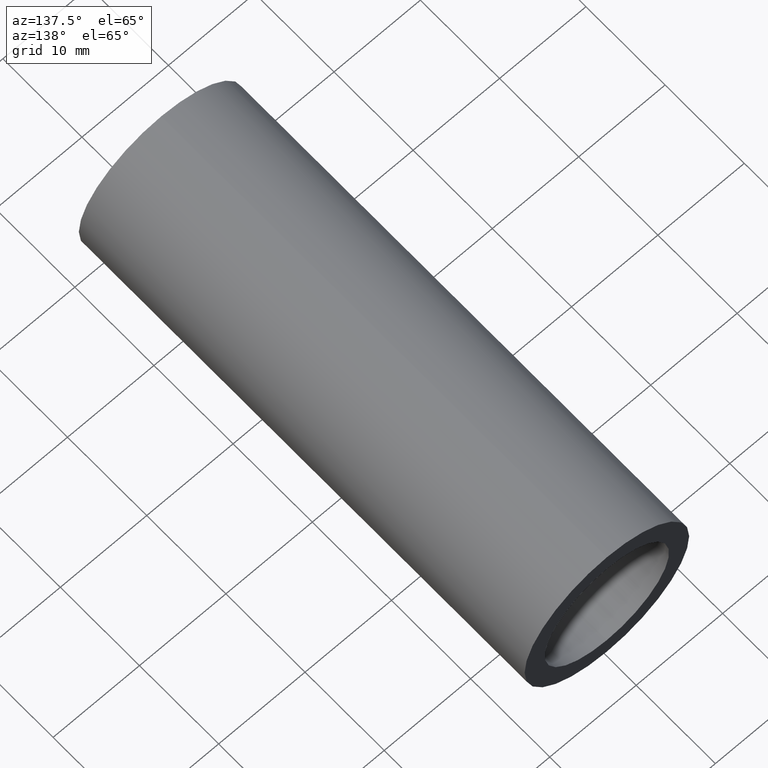
[diagram: clean part render]
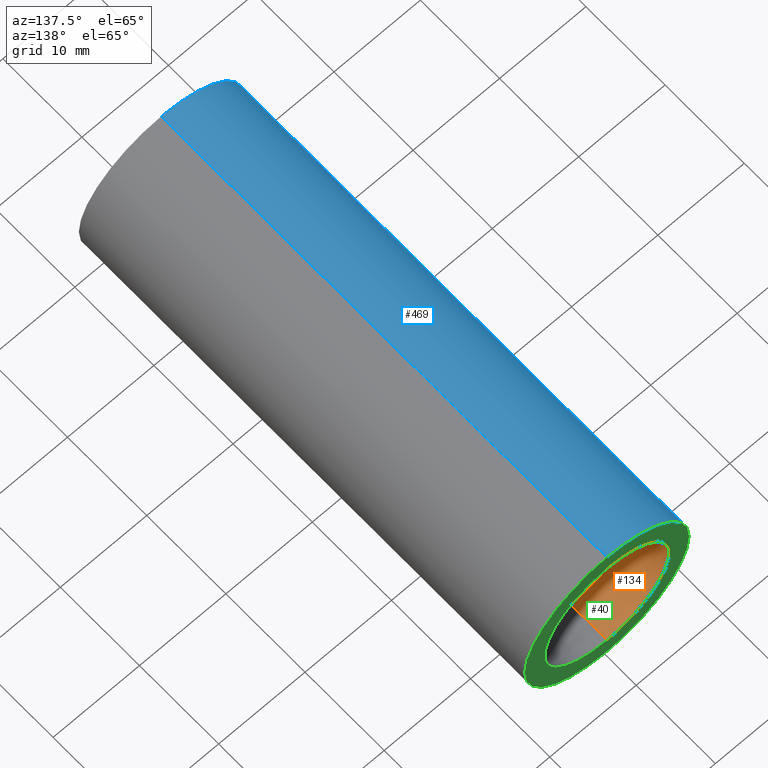
[diagram: same view with three faces highlighted in distinct colors, each labeled with its STEP entity id]
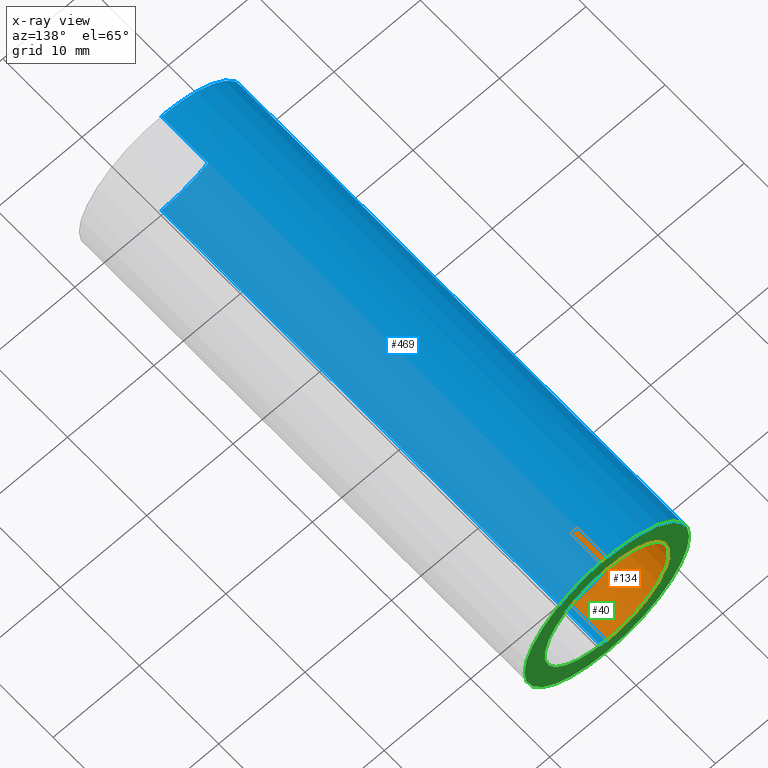
[diagram: x-ray of the same camera — body ghosted, the three highlighted faces saturated]
A machine part, auxiliary view with three faces highlighted in distinct colors.
The next image is the same camera in x-ray (body ghosted, the three faces saturated) — at least one of them is partly hidden behind the body in this view.
Their STEP definitions:

[orange] entity #134 — the highlighted cylindrical surface (partial cylindrical patch) has radius 7.2 mm, axis along (-0, 1, -0).
#17 = VECTOR ( 'NONE', #531, 1000.000000000000000 ) ;
#19 = DIRECTION ( 'NONE',  ( -0.0000000000000000000, 1.000000000000000000, -0.0000000000000000000 ) ) ;
#35 = VERTEX_POINT ( 'NONE', #405 ) ;
#64 = VECTOR ( 'NONE', #185, 1000.000000000000000 ) ;
#76 = DIRECTION ( 'NONE',  ( 0.0000000000000000000, 0.0000000000000000000, 1.000000000000000000 ) ) ;
#109 = CYLINDRICAL_SURFACE ( 'NONE', #303, 7.200000000000011700 ) ;
#111 = LINE ( 'NONE', #370, #64 ) ;
#134 = ADVANCED_FACE ( 'NONE', ( #528 ), #109, .F. ) ;
#141 = EDGE_CURVE ( 'NONE', #407, #292, #320, .T. ) ;
#157 = LINE ( 'NONE', #590, #17 ) ;
#167 = ORIENTED_EDGE ( 'NONE', *, *, #393, .T. ) ;
#176 = AXIS2_PLACEMENT_3D ( 'NONE', #307, #354, #76 ) ;
#181 = EDGE_LOOP ( 'NONE', ( #276, #167, #425, #489 ) ) ;
#185 = DIRECTION ( 'NONE',  ( -0.0000000000000000000, 1.000000000000000000, -0.0000000000000000000 ) ) ;
#240 = DIRECTION ( 'NONE',  ( -0.0000000000000000000, 1.000000000000000000, -0.0000000000000000000 ) ) ;
#250 = EDGE_CURVE ( 'NONE', #292, #35, #111, .T. ) ;
#276 = ORIENTED_EDGE ( 'NONE', *, *, #141, .F. ) ;
#292 = VERTEX_POINT ( 'NONE', #569 ) ;
#303 = AXIS2_PLACEMENT_3D ( 'NONE', #308, #19, #315 ) ;
#307 = CARTESIAN_POINT ( 'NONE',  ( 0.0000000000000000000, 51.79999999999998300, 0.0000000000000000000 ) ) ;
#308 = CARTESIAN_POINT ( 'NONE',  ( 0.0000000000000000000, 161.3761669434274500, 0.0000000000000000000 ) ) ;
#310 = VERTEX_POINT ( 'NONE', #465 ) ;
#315 = DIRECTION ( 'NONE',  ( 0.0000000000000000000, 0.0000000000000000000, 1.000000000000000000 ) ) ;
#320 = CIRCLE ( 'NONE', #176, 7.200000000000011700 ) ;
#329 = AXIS2_PLACEMENT_3D ( 'NONE', #580, #240, #390 ) ;
#354 = DIRECTION ( 'NONE',  ( -0.0000000000000000000, 1.000000000000000000, -0.0000000000000000000 ) ) ;
#370 = CARTESIAN_POINT ( 'NONE',  ( 0.0000000000000000000, 161.3761669434274500, 7.200000000000011700 ) ) ;
#382 = CIRCLE ( 'NONE', #329, 7.200000000000012600 ) ;
#390 = DIRECTION ( 'NONE',  ( 0.0000000000000000000, 0.0000000000000000000, 1.000000000000000000 ) ) ;
#393 = EDGE_CURVE ( 'NONE', #407, #310, #157, .T. ) ;
#405 = CARTESIAN_POINT ( 'NONE',  ( 0.0000000000000000000, 56.29999999999999000, 7.200000000000012600 ) ) ;
#407 = VERTEX_POINT ( 'NONE', #487 ) ;
#425 = ORIENTED_EDGE ( 'NONE', *, *, #554, .T. ) ;
#465 = CARTESIAN_POINT ( 'NONE',  ( 8.817456953860959100E-016, 56.29999999999999000, -7.200000000000013500 ) ) ;
#487 = CARTESIAN_POINT ( 'NONE',  ( 8.817456953860957100E-016, 51.79999999999998300, -7.200000000000011700 ) ) ;
#489 = ORIENTED_EDGE ( 'NONE', *, *, #250, .F. ) ;
#528 = FACE_OUTER_BOUND ( 'NONE', #181, .T. ) ;
#531 = DIRECTION ( 'NONE',  ( -0.0000000000000000000, 1.000000000000000000, -0.0000000000000000000 ) ) ;
#554 = EDGE_CURVE ( 'NONE', #310, #35, #382, .T. ) ;
#569 = CARTESIAN_POINT ( 'NONE',  ( 0.0000000000000000000, 51.79999999999998300, 7.200000000000011700 ) ) ;
#580 = CARTESIAN_POINT ( 'NONE',  ( 0.0000000000000000000, 56.29999999999999000, 0.0000000000000000000 ) ) ;
#590 = CARTESIAN_POINT ( 'NONE',  ( 8.817456953860957100E-016, 161.3761669434274500, -7.200000000000011700 ) ) ;

[blue] entity #469 — the highlighted cylindrical surface (partial cylindrical patch) has radius 9.525 mm, axis along (-0, 1, -0).
#6 = DIRECTION ( 'NONE',  ( -0.0000000000000000000, 1.000000000000000000, -0.0000000000000000000 ) ) ;
#7 = LINE ( 'NONE', #28, #565 ) ;
#23 = EDGE_LOOP ( 'NONE', ( #127, #394, #72, #621 ) ) ;
#24 = CIRCLE ( 'NONE', #317, 9.525000000000019900 ) ;
#28 = CARTESIAN_POINT ( 'NONE',  ( 1.166476076187856400E-015, 161.3761669434274500, -9.525000000000019900 ) ) ;
#47 = DIRECTION ( 'NONE',  ( -0.0000000000000000000, 1.000000000000000000, -0.0000000000000000000 ) ) ;
#57 = EDGE_CURVE ( 'NONE', #266, #207, #100, .T. ) ;
#72 = ORIENTED_EDGE ( 'NONE', *, *, #57, .T. ) ;
#90 = CARTESIAN_POINT ( 'NONE',  ( 0.0000000000000000000, -2.775557561562891400E-014, 9.525000000000019900 ) ) ;
#100 = LINE ( 'NONE', #362, #299 ) ;
#123 = DIRECTION ( 'NONE',  ( -0.0000000000000000000, 1.000000000000000000, -0.0000000000000000000 ) ) ;
#127 = ORIENTED_EDGE ( 'NONE', *, *, #295, .F. ) ;
#144 = AXIS2_PLACEMENT_3D ( 'NONE', #290, #210, #302 ) ;
#150 = CYLINDRICAL_SURFACE ( 'NONE', #144, 9.525000000000019900 ) ;
#199 = DIRECTION ( 'NONE',  ( -0.0000000000000000000, 1.000000000000000000, -0.0000000000000000000 ) ) ;
#207 = VERTEX_POINT ( 'NONE', #421 ) ;
#210 = DIRECTION ( 'NONE',  ( -0.0000000000000000000, 1.000000000000000000, -0.0000000000000000000 ) ) ;
#243 = CARTESIAN_POINT ( 'NONE',  ( 1.166476076187856400E-015, 56.29999999999999000, -9.525000000000019900 ) ) ;
#266 = VERTEX_POINT ( 'NONE', #90 ) ;
#283 = DIRECTION ( 'NONE',  ( 0.0000000000000000000, 0.0000000000000000000, 1.000000000000000000 ) ) ;
#290 = CARTESIAN_POINT ( 'NONE',  ( 0.0000000000000000000, 161.3761669434274500, 0.0000000000000000000 ) ) ;
#295 = EDGE_CURVE ( 'NONE', #509, #518, #7, .T. ) ;
#299 = VECTOR ( 'NONE', #123, 1000.000000000000000 ) ;
#302 = DIRECTION ( 'NONE',  ( 0.0000000000000000000, 0.0000000000000000000, 1.000000000000000000 ) ) ;
#317 = AXIS2_PLACEMENT_3D ( 'NONE', #339, #6, #438 ) ;
#331 = EDGE_CURVE ( 'NONE', #509, #266, #451, .T. ) ;
#339 = CARTESIAN_POINT ( 'NONE',  ( 0.0000000000000000000, 56.29999999999999000, 0.0000000000000000000 ) ) ;
#362 = CARTESIAN_POINT ( 'NONE',  ( 0.0000000000000000000, 161.3761669434274500, 9.525000000000019900 ) ) ;
#375 = CARTESIAN_POINT ( 'NONE',  ( 0.0000000000000000000, -2.775557561562891400E-014, 0.0000000000000000000 ) ) ;
#394 = ORIENTED_EDGE ( 'NONE', *, *, #331, .T. ) ;
#421 = CARTESIAN_POINT ( 'NONE',  ( 0.0000000000000000000, 56.29999999999999000, 9.525000000000019900 ) ) ;
#438 = DIRECTION ( 'NONE',  ( 0.0000000000000000000, 0.0000000000000000000, 1.000000000000000000 ) ) ;
#451 = CIRCLE ( 'NONE', #613, 9.525000000000019900 ) ;
#469 = ADVANCED_FACE ( 'NONE', ( #493 ), #150, .T. ) ;
#493 = FACE_OUTER_BOUND ( 'NONE', #23, .T. ) ;
#509 = VERTEX_POINT ( 'NONE', #523 ) ;
#518 = VERTEX_POINT ( 'NONE', #243 ) ;
#523 = CARTESIAN_POINT ( 'NONE',  ( 1.166476076187856400E-015, -2.775557561562891400E-014, -9.525000000000019900 ) ) ;
#565 = VECTOR ( 'NONE', #47, 1000.000000000000000 ) ;
#589 = EDGE_CURVE ( 'NONE', #518, #207, #24, .T. ) ;
#613 = AXIS2_PLACEMENT_3D ( 'NONE', #375, #199, #283 ) ;
#621 = ORIENTED_EDGE ( 'NONE', *, *, #589, .F. ) ;

[green] entity #40 — the highlighted planar face has unit normal (0, -1, 0).
#2 = DIRECTION ( 'NONE',  ( -0.0000000000000000000, 1.000000000000000000, -0.0000000000000000000 ) ) ;
#6 = DIRECTION ( 'NONE',  ( -0.0000000000000000000, 1.000000000000000000, -0.0000000000000000000 ) ) ;
#10 = AXIS2_PLACEMENT_3D ( 'NONE', #495, #219, #217 ) ;
#20 = PLANE ( 'NONE',  #10 ) ;
#24 = CIRCLE ( 'NONE', #317, 9.525000000000019900 ) ;
#35 = VERTEX_POINT ( 'NONE', #405 ) ;
#40 = ADVANCED_FACE ( 'NONE', ( #545, #288 ), #20, .F. ) ;
#45 = DIRECTION ( 'NONE',  ( 0.0000000000000000000, 0.0000000000000000000, 1.000000000000000000 ) ) ;
#59 = CARTESIAN_POINT ( 'NONE',  ( 0.0000000000000000000, 56.29999999999999000, 0.0000000000000000000 ) ) ;
#71 = ORIENTED_EDGE ( 'NONE', *, *, #311, .T. ) ;
#138 = CIRCLE ( 'NONE', #471, 7.200000000000012600 ) ;
#190 = CARTESIAN_POINT ( 'NONE',  ( 0.0000000000000000000, 56.29999999999999000, 0.0000000000000000000 ) ) ;
#207 = VERTEX_POINT ( 'NONE', #421 ) ;
#217 = DIRECTION ( 'NONE',  ( 0.0000000000000000000, -0.0000000000000000000, -1.000000000000000000 ) ) ;
#219 = DIRECTION ( 'NONE',  ( 0.0000000000000000000, -1.000000000000000000, 0.0000000000000000000 ) ) ;
#221 = AXIS2_PLACEMENT_3D ( 'NONE', #190, #2, #45 ) ;
#240 = DIRECTION ( 'NONE',  ( -0.0000000000000000000, 1.000000000000000000, -0.0000000000000000000 ) ) ;
#243 = CARTESIAN_POINT ( 'NONE',  ( 1.166476076187856400E-015, 56.29999999999999000, -9.525000000000019900 ) ) ;
#247 = ORIENTED_EDGE ( 'NONE', *, *, #589, .T. ) ;
#279 = EDGE_LOOP ( 'NONE', ( #71, #247 ) ) ;
#288 = FACE_OUTER_BOUND ( 'NONE', #279, .T. ) ;
#297 = EDGE_LOOP ( 'NONE', ( #448, #400 ) ) ;
#310 = VERTEX_POINT ( 'NONE', #465 ) ;
#311 = EDGE_CURVE ( 'NONE', #207, #518, #373, .T. ) ;
#317 = AXIS2_PLACEMENT_3D ( 'NONE', #339, #6, #438 ) ;
#329 = AXIS2_PLACEMENT_3D ( 'NONE', #580, #240, #390 ) ;
#339 = CARTESIAN_POINT ( 'NONE',  ( 0.0000000000000000000, 56.29999999999999000, 0.0000000000000000000 ) ) ;
#373 = CIRCLE ( 'NONE', #221, 9.525000000000019900 ) ;
#382 = CIRCLE ( 'NONE', #329, 7.200000000000012600 ) ;
#390 = DIRECTION ( 'NONE',  ( 0.0000000000000000000, 0.0000000000000000000, 1.000000000000000000 ) ) ;
#391 = DIRECTION ( 'NONE',  ( -0.0000000000000000000, 1.000000000000000000, -0.0000000000000000000 ) ) ;
#400 = ORIENTED_EDGE ( 'NONE', *, *, #554, .F. ) ;
#405 = CARTESIAN_POINT ( 'NONE',  ( 0.0000000000000000000, 56.29999999999999000, 7.200000000000012600 ) ) ;
#421 = CARTESIAN_POINT ( 'NONE',  ( 0.0000000000000000000, 56.29999999999999000, 9.525000000000019900 ) ) ;
#438 = DIRECTION ( 'NONE',  ( 0.0000000000000000000, 0.0000000000000000000, 1.000000000000000000 ) ) ;
#448 = ORIENTED_EDGE ( 'NONE', *, *, #456, .F. ) ;
#456 = EDGE_CURVE ( 'NONE', #35, #310, #138, .T. ) ;
#465 = CARTESIAN_POINT ( 'NONE',  ( 8.817456953860959100E-016, 56.29999999999999000, -7.200000000000013500 ) ) ;
#471 = AXIS2_PLACEMENT_3D ( 'NONE', #59, #391, #541 ) ;
#495 = CARTESIAN_POINT ( 'NONE',  ( 7.200000000000012600, 56.29999999999998300, 0.0000000000000000000 ) ) ;
#518 = VERTEX_POINT ( 'NONE', #243 ) ;
#541 = DIRECTION ( 'NONE',  ( 0.0000000000000000000, 0.0000000000000000000, 1.000000000000000000 ) ) ;
#545 = FACE_BOUND ( 'NONE', #297, .T. ) ;
#554 = EDGE_CURVE ( 'NONE', #310, #35, #382, .T. ) ;
#580 = CARTESIAN_POINT ( 'NONE',  ( 0.0000000000000000000, 56.29999999999999000, 0.0000000000000000000 ) ) ;
#589 = EDGE_CURVE ( 'NONE', #518, #207, #24, .T. ) ;